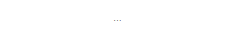
[diagram: root canvas - part 1/4, top left region]
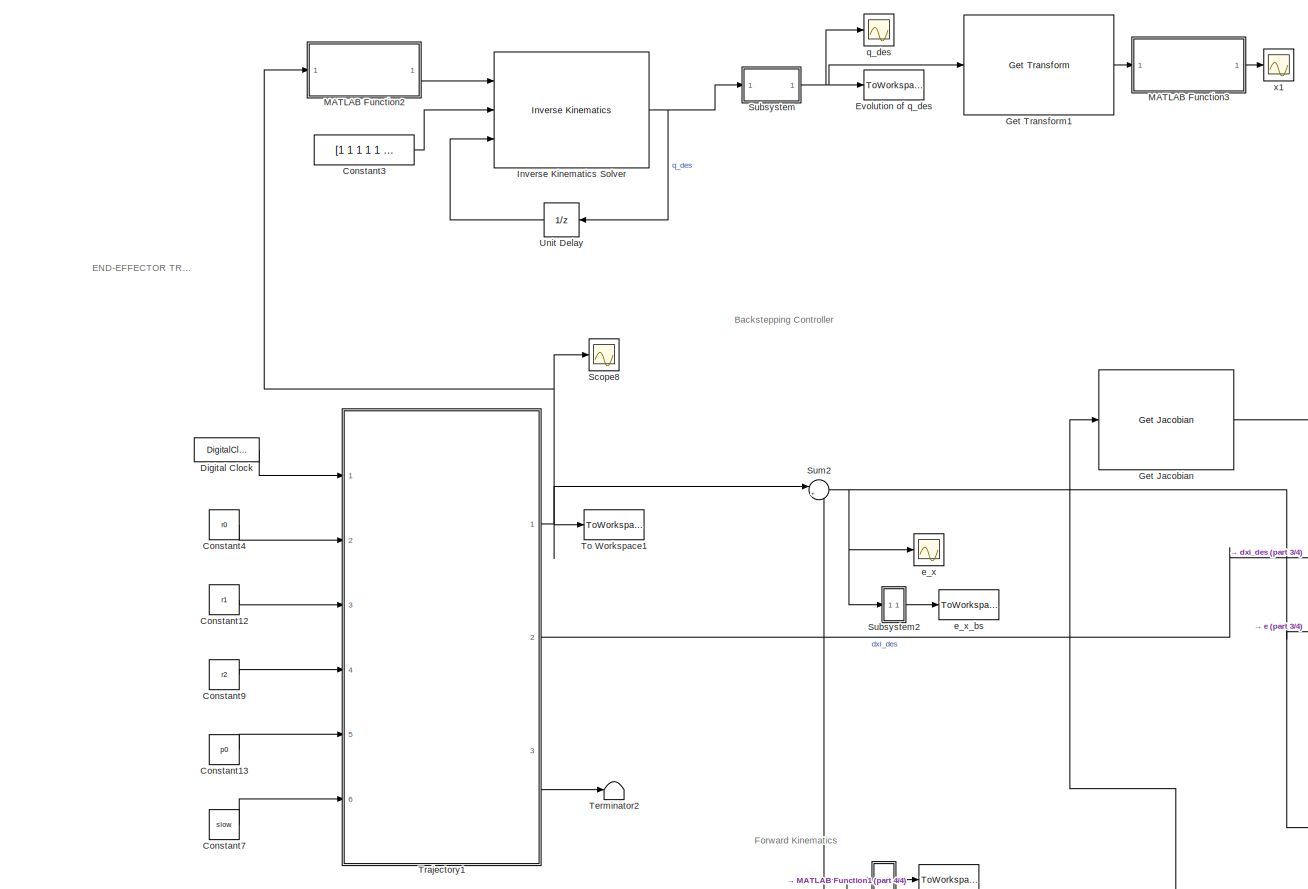
[diagram: root canvas - part 2/4, left side, full height]
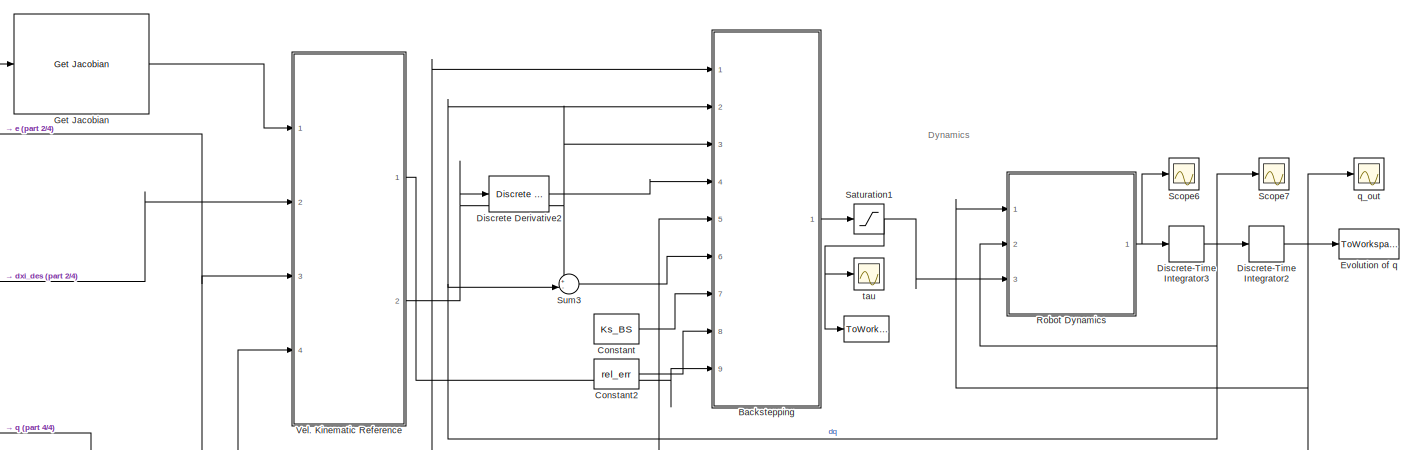
[diagram: root canvas - part 3/4, middle right region]
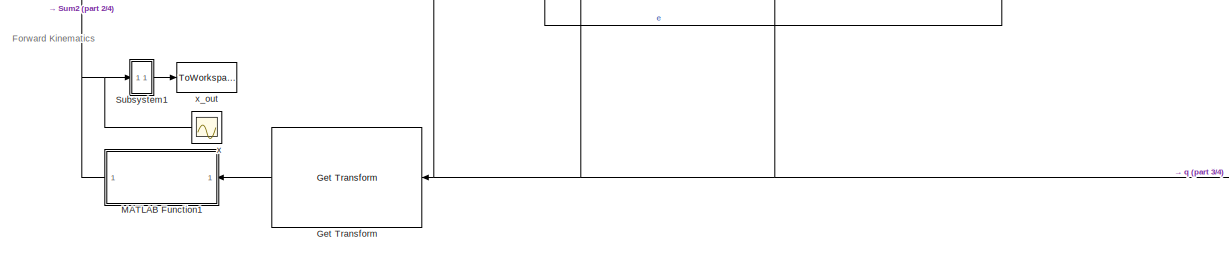
[diagram: root canvas - part 4/4, bottom center region]
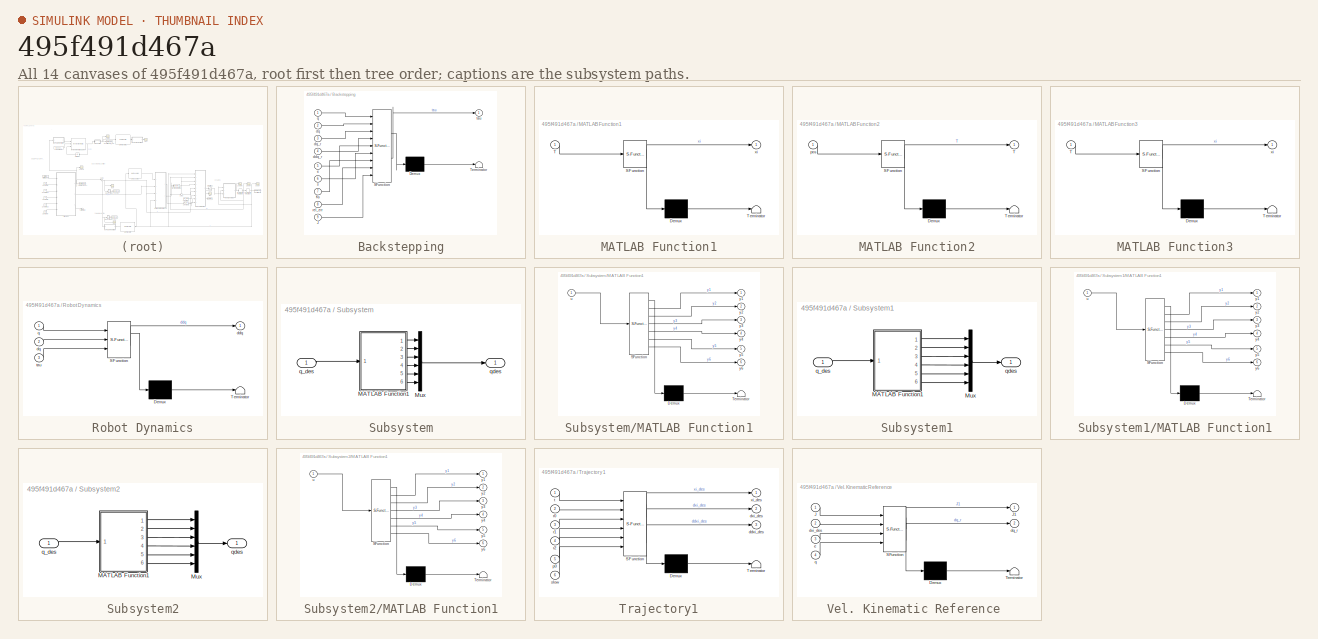
[diagram: thumbnail index - all 14 canvases of the model, root first then tree order]
MODEL slx_495f491d467a
KIND model
CONFIG AbsTol = auto
CONFIG EnableMultiTasking = off
CONFIG FixedStep = auto
CONFIG MaxStep = auto
CONFIG MinStep = auto
CONFIG RelTol = 1e-6
CONFIG SampleTimeConstraint = Unconstrained
CONFIG SolverName = VariableStepAuto
CONFIG StartTime = 0.0
CONFIG StopTime = 200
BLOCK [ToWorkspace]          
  FixptAsFi = on
  MaxDataPoints = inf
  Ports = [1]
  SampleTime = -1
  SaveFormat = Timeseries
  VariableName = tau_out
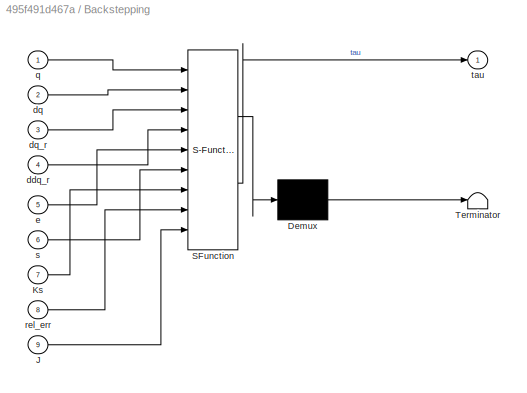
BLOCK [SubSystem] Backstepping
  ErrorFcn = Stateflow.Translate.translate
  PermitHierarchicalResolution = ExplicitOnly
  Ports = [9, 1]
  RequestExecContextInheritance = off
  SFBlockType = MATLAB Function
  TreatAsAtomicUnit = on
BLOCK [Demux] Backstepping/ Demux 
  Outputs = 1
  Ports = [1, 1]
BLOCK [S-Function] Backstepping/ SFunction 
  EnableBusSupport = on
  FunctionName = sf_sfun
  PortCounts = [9 2]
  Ports = [9, 2]
  SFcnIsStateOwnerBlock = off
  SFunctionDeploymentMode = off
  Tag = Stateflow S-Function 5
BLOCK [Terminator] Backstepping/ Terminator 
BLOCK [Inport] Backstepping/J
  Port = 9
BLOCK [Inport] Backstepping/Ks
  Port = 7
BLOCK [Inport] Backstepping/ddq_r
  Port = 4
BLOCK [Inport] Backstepping/dq
  Port = 2
BLOCK [Inport] Backstepping/dq_r
  Port = 3
BLOCK [Inport] Backstepping/e
  Port = 5
BLOCK [Inport] Backstepping/q
BLOCK [Inport] Backstepping/rel_err
  Port = 8
BLOCK [Inport] Backstepping/s
  Port = 6
BLOCK [Outport] Backstepping/tau
  VectorParamsAs1DForOutWhenUnconnected = off
BLOCK [Constant] Constant
  Value = Ks_BS
BLOCK [Constant] Constant12
  Value = r1
BLOCK [Constant] Constant13
  Value = p0
BLOCK [Constant] Constant2
  Value = rel_err
BLOCK [Constant] Constant3
  Value = [1 1 1 1 1 1]
BLOCK [Constant] Constant4
  Value = r0
BLOCK [Constant] Constant7
  Value = slow
BLOCK [Constant] Constant9
  Value = r2
BLOCK [DigitalClock] Digital Clock
  SampleTime = 0.01
BLOCK [Reference] Discrete Derivative2  REF=simulink/Discrete/Discrete Derivative
  Ports = [1, 1]
  SourceBlock = simulink/Discrete/Discrete Derivative
  SourceProductBaseCode = SL
  SourceType = Discrete Derivative
BLOCK [DiscreteIntegrator] Discrete-Time Integrator2
  ICPrevOutput = DiscIntNeverNeededParam
  ICPrevScaledInput = DiscIntNeverNeededParam
  InitialCondition = q0
  InitialConditionSetting = Auto
  Ports = [1, 1]
  SampleTime = -1
BLOCK [DiscreteIntegrator] Discrete-Time Integrator3
  ICPrevOutput = DiscIntNeverNeededParam
  ICPrevScaledInput = DiscIntNeverNeededParam
  InitialCondition = dq0
  InitialConditionSetting = Auto
  Ports = [1, 1]
  SampleTime = -1
BLOCK [ToWorkspace] Evolution of q
  FixptAsFi = on
  MaxDataPoints = inf
  Ports = [1]
  SampleTime = -1
  SaveFormat = Timeseries
  VariableName = q_out
BLOCK [ToWorkspace] Evolution of q_des
  FixptAsFi = on
  MaxDataPoints = inf
  Ports = [1]
  SampleTime = -1
  SaveFormat = Timeseries
  VariableName = q_des_out
BLOCK [Reference] Get Jacobian  REF=robotmaniplib/Get Jacobian
  Ports = [1, 1]
  SourceBlock = robotmaniplib/Get Jacobian
  SourceProductBaseCode = RO
  SourceType = Get Jacobian
BLOCK [Reference] Get Transform  REF=robotmaniplib/Get Transform
  NameLocation = top
  Ports = [1, 1]
  SourceBlock = robotmaniplib/Get Transform
  SourceProductBaseCode = RO
  SourceType = Get Transform
BLOCK [Reference] Get Transform1  REF=robotmaniplib/Get Transform
  Ports = [1, 1]
  SourceBlock = robotmaniplib/Get Transform
  SourceProductBaseCode = RO
  SourceType = Get Transform
BLOCK [Reference] Inverse Kinematics Solver  REF=robotmaniplib/Inverse Kinematics
  Ports = [3, 1]
  SourceBlock = robotmaniplib/Inverse Kinematics
  SourceProductBaseCode = RO
  SourceType = Inverse Kinematics
BLOCK [SubSystem] MATLAB Function1
  ErrorFcn = Stateflow.Translate.translate
  NameLocation = top
  PermitHierarchicalResolution = ExplicitOnly
  Ports = [1, 1]
  RequestExecContextInheritance = off
  SFBlockType = MATLAB Function
  TreatAsAtomicUnit = on
BLOCK [Demux] MATLAB Function1/ Demux 
  Outputs = 1
  Ports = [1, 1]
BLOCK [S-Function] MATLAB Function1/ SFunction 
  EnableBusSupport = on
  FunctionName = sf_sfun
  PortCounts = [1 2]
  Ports = [1, 2]
  SFcnIsStateOwnerBlock = off
  SFunctionDeploymentMode = off
  Tag = Stateflow S-Function 2
BLOCK [Terminator] MATLAB Function1/ Terminator 
BLOCK [Inport] MATLAB Function1/T
BLOCK [Outport] MATLAB Function1/xi
BLOCK [SubSystem] MATLAB Function2
  ErrorFcn = Stateflow.Translate.translate
  PermitHierarchicalResolution = ExplicitOnly
  Ports = [1, 1]
  RequestExecContextInheritance = off
  SFBlockType = MATLAB Function
  TreatAsAtomicUnit = on
BLOCK [Demux] MATLAB Function2/ Demux 
  Outputs = 1
  Ports = [1, 1]
BLOCK [S-Function] MATLAB Function2/ SFunction 
  EnableBusSupport = on
  FunctionName = sf_sfun
  PortCounts = [1 2]
  Ports = [1, 2]
  SFcnIsStateOwnerBlock = off
  SFunctionDeploymentMode = off
  Tag = Stateflow S-Function 11
BLOCK [Terminator] MATLAB Function2/ Terminator 
BLOCK [Outport] MATLAB Function2/T
BLOCK [Inport] MATLAB Function2/pos
BLOCK [SubSystem] MATLAB Function3
  ErrorFcn = Stateflow.Translate.translate
  PermitHierarchicalResolution = ExplicitOnly
  Ports = [1, 1]
  RequestExecContextInheritance = off
  SFBlockType = MATLAB Function
  TreatAsAtomicUnit = on
BLOCK [Demux] MATLAB Function3/ Demux 
  Outputs = 1
  Ports = [1, 1]
BLOCK [S-Function] MATLAB Function3/ SFunction 
  EnableBusSupport = on
  FunctionName = sf_sfun
  PortCounts = [1 2]
  Ports = [1, 2]
  SFcnIsStateOwnerBlock = off
  SFunctionDeploymentMode = off
  Tag = Stateflow S-Function 1
BLOCK [Terminator] MATLAB Function3/ Terminator 
BLOCK [Inport] MATLAB Function3/T
BLOCK [Outport] MATLAB Function3/xi
BLOCK [SubSystem] Robot Dynamics
  ErrorFcn = Stateflow.Translate.translate
  PermitHierarchicalResolution = ExplicitOnly
  Ports = [3, 1]
  RequestExecContextInheritance = off
  SFBlockType = MATLAB Function
  TreatAsAtomicUnit = on
BLOCK [Demux] Robot Dynamics/ Demux 
  Outputs = 1
  Ports = [1, 1]
BLOCK [S-Function] Robot Dynamics/ SFunction 
  EnableBusSupport = on
  FunctionName = sf_sfun
  PortCounts = [3 2]
  Ports = [3, 2]
  SFcnIsStateOwnerBlock = off
  SFunctionDeploymentMode = off
  Tag = Stateflow S-Function 12
BLOCK [Terminator] Robot Dynamics/ Terminator 
BLOCK [Outport] Robot Dynamics/ddq
  VectorParamsAs1DForOutWhenUnconnected = off
BLOCK [Inport] Robot Dynamics/dq
  Port = 2
BLOCK [Inport] Robot Dynamics/q
BLOCK [Inport] Robot Dynamics/tau
  Port = 3
BLOCK [Saturate] Saturation1
  LowerLimit = -100
  UpperLimit = 100
BLOCK [Scope] Scope6
  Commented = on
  Floating = off
  NumInputPorts = 1
  Ports = [1]
  ScopeSpecificationString = Simulink.scopes.TimeScopeBlockCfg('CurrentConfiguration', extmgr.ConfigurationSet(extmgr.Configuration('Core','General UI',true),extmgr.Configuration('Core','Source UI',true),extmgr.Configuration('Sources','WiredSimulink',true,'DataLoggingVariableName','ScopeData4'),extmgr.Configuration('Visuals','Time Domain',true,'SerializedDisplays',{struct('MinYLimReal','-5596.78805','MaxYLimReal','5521.07963'...<+1567ch>
BLOCK [Scope] Scope7
  Commented = on
  Floating = off
  NumInputPorts = 1
  Ports = [1]
  ScopeSpecificationString = Simulink.scopes.TimeScopeBlockCfg('CurrentConfiguration', extmgr.ConfigurationSet(extmgr.Configuration('Core','General UI',true),extmgr.Configuration('Core','Source UI',true),extmgr.Configuration('Sources','WiredSimulink',true,'DataLoggingVariableName','ScopeData5'),extmgr.Configuration('Visuals','Time Domain',true,'SerializedDisplays',{struct('MinYLimReal','-21.23035','MaxYLimReal','51.35107','YL...<+1475ch>
BLOCK [Scope] Scope8
  Floating = off
  NumInputPorts = 1
  Ports = [1]
  ScopeSpecificationString = Simulink.scopes.TimeScopeBlockCfg('CurrentConfiguration', extmgr.ConfigurationSet(extmgr.Configuration('Core','General UI',true),extmgr.Configuration('Core','Source UI',true),extmgr.Configuration('Sources','WiredSimulink',true,'DataLoggingVariableName','ScopeData1'),extmgr.Configuration('Visuals','Time Domain',true,'SerializedDisplays',{struct('MinYLimReal','-0.5625','MaxYLimReal','1.0625','YLabel...<+1696ch>
BLOCK [SubSystem] Subsystem
  Ports = [1, 1]
  RequestExecContextInheritance = off
BLOCK [SubSystem] Subsystem/MATLAB Function1
  ErrorFcn = Stateflow.Translate.translate
  PermitHierarchicalResolution = ExplicitOnly
  Ports = [1, 6]
  RequestExecContextInheritance = off
  SFBlockType = MATLAB Function
  TreatAsAtomicUnit = on
BLOCK [Demux] Subsystem/MATLAB Function1/ Demux 
  Outputs = 1
  Ports = [1, 1]
BLOCK [S-Function] Subsystem/MATLAB Function1/ SFunction 
  EnableBusSupport = on
  FunctionName = sf_sfun
  PortCounts = [1 7]
  Ports = [1, 7]
  SFcnIsStateOwnerBlock = off
  SFunctionDeploymentMode = off
  Tag = Stateflow S-Function 4
BLOCK [Terminator] Subsystem/MATLAB Function1/ Terminator 
BLOCK [Inport] Subsystem/MATLAB Function1/u
BLOCK [Outport] Subsystem/MATLAB Function1/y1
BLOCK [Outport] Subsystem/MATLAB Function1/y2
  Port = 2
BLOCK [Outport] Subsystem/MATLAB Function1/y3
  Port = 3
BLOCK [Outport] Subsystem/MATLAB Function1/y4
  Port = 4
BLOCK [Outport] Subsystem/MATLAB Function1/y5
  Port = 5
BLOCK [Outport] Subsystem/MATLAB Function1/y6
  Port = 6
BLOCK [Mux] Subsystem/Mux
  DisplayOption = bar
  Inputs = 6
  Ports = [6, 1]
BLOCK [Inport] Subsystem/q_des
BLOCK [Outport] Subsystem/qdes
BLOCK [SubSystem] Subsystem1
  Ports = [1, 1]
  RequestExecContextInheritance = off
BLOCK [SubSystem] Subsystem1/MATLAB Function1
  ErrorFcn = Stateflow.Translate.translate
  PermitHierarchicalResolution = ExplicitOnly
  Ports = [1, 6]
  RequestExecContextInheritance = off
  SFBlockType = MATLAB Function
  TreatAsAtomicUnit = on
BLOCK [Demux] Subsystem1/MATLAB Function1/ Demux 
  Outputs = 1
  Ports = [1, 1]
BLOCK [S-Function] Subsystem1/MATLAB Function1/ SFunction 
  EnableBusSupport = on
  FunctionName = sf_sfun
  PortCounts = [1 7]
  Ports = [1, 7]
  SFcnIsStateOwnerBlock = off
  SFunctionDeploymentMode = off
  Tag = Stateflow S-Function 7
BLOCK [Terminator] Subsystem1/MATLAB Function1/ Terminator 
BLOCK [Inport] Subsystem1/MATLAB Function1/u
BLOCK [Outport] Subsystem1/MATLAB Function1/y1
BLOCK [Outport] Subsystem1/MATLAB Function1/y2
  Port = 2
BLOCK [Outport] Subsystem1/MATLAB Function1/y3
  Port = 3
BLOCK [Outport] Subsystem1/MATLAB Function1/y4
  Port = 4
BLOCK [Outport] Subsystem1/MATLAB Function1/y5
  Port = 5
BLOCK [Outport] Subsystem1/MATLAB Function1/y6
  Port = 6
BLOCK [Mux] Subsystem1/Mux
  DisplayOption = bar
  Inputs = 6
  Ports = [6, 1]
BLOCK [Inport] Subsystem1/q_des
BLOCK [Outport] Subsystem1/qdes
BLOCK [SubSystem] Subsystem2
  Ports = [1, 1]
  RequestExecContextInheritance = off
BLOCK [SubSystem] Subsystem2/MATLAB Function1
  ErrorFcn = Stateflow.Translate.translate
  PermitHierarchicalResolution = ExplicitOnly
  Ports = [1, 6]
  RequestExecContextInheritance = off
  SFBlockType = MATLAB Function
  TreatAsAtomicUnit = on
BLOCK [Demux] Subsystem2/MATLAB Function1/ Demux 
  Outputs = 1
  Ports = [1, 1]
BLOCK [S-Function] Subsystem2/MATLAB Function1/ SFunction 
  EnableBusSupport = on
  FunctionName = sf_sfun
  PortCounts = [1 7]
  Ports = [1, 7]
  SFcnIsStateOwnerBlock = off
  SFunctionDeploymentMode = off
  Tag = Stateflow S-Function 8
BLOCK [Terminator] Subsystem2/MATLAB Function1/ Terminator 
BLOCK [Inport] Subsystem2/MATLAB Function1/u
BLOCK [Outport] Subsystem2/MATLAB Function1/y1
BLOCK [Outport] Subsystem2/MATLAB Function1/y2
  Port = 2
BLOCK [Outport] Subsystem2/MATLAB Function1/y3
  Port = 3
BLOCK [Outport] Subsystem2/MATLAB Function1/y4
  Port = 4
BLOCK [Outport] Subsystem2/MATLAB Function1/y5
  Port = 5
BLOCK [Outport] Subsystem2/MATLAB Function1/y6
  Port = 6
BLOCK [Mux] Subsystem2/Mux
  DisplayOption = bar
  Inputs = 6
  Ports = [6, 1]
BLOCK [Inport] Subsystem2/q_des
BLOCK [Outport] Subsystem2/qdes
BLOCK [Sum] Sum2
  Inputs = |+-
  Ports = [2, 1]
BLOCK [Sum] Sum3
  Inputs = +-|
  Ports = [2, 1]
BLOCK [Terminator] Terminator2
BLOCK [ToWorkspace] To Workspace1
  FixptAsFi = on
  MaxDataPoints = inf
  Ports = [1]
  SampleTime = -1
  SaveFormat = Timeseries
  VariableName = xi_des_out
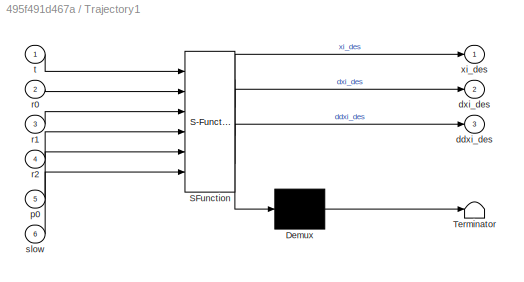
BLOCK [SubSystem] Trajectory1
  ErrorFcn = Stateflow.Translate.translate
  PermitHierarchicalResolution = ExplicitOnly
  Ports = [6, 3]
  RequestExecContextInheritance = off
  SFBlockType = MATLAB Function
  TreatAsAtomicUnit = on
BLOCK [Demux] Trajectory1/ Demux 
  Outputs = 1
  Ports = [1, 1]
BLOCK [S-Function] Trajectory1/ SFunction 
  EnableBusSupport = on
  FunctionName = sf_sfun
  PortCounts = [6 4]
  Ports = [6, 4]
  SFcnIsStateOwnerBlock = off
  SFunctionDeploymentMode = off
  Tag = Stateflow S-Function 6
BLOCK [Terminator] Trajectory1/ Terminator 
BLOCK [Outport] Trajectory1/ddxi_des
  Port = 3
  VectorParamsAs1DForOutWhenUnconnected = off
BLOCK [Outport] Trajectory1/dxi_des
  Port = 2
  VectorParamsAs1DForOutWhenUnconnected = off
BLOCK [Inport] Trajectory1/p0
  Port = 5
BLOCK [Inport] Trajectory1/r0
  Port = 2
BLOCK [Inport] Trajectory1/r1
  Port = 3
BLOCK [Inport] Trajectory1/r2
  Port = 4
BLOCK [Inport] Trajectory1/slow
  Port = 6
BLOCK [Inport] Trajectory1/t
BLOCK [Outport] Trajectory1/xi_des
  VectorParamsAs1DForOutWhenUnconnected = off
BLOCK [UnitDelay] Unit Delay
  HasFrameUpgradeWarning = on
  SampleTime = -1
BLOCK [SubSystem] Vel. Kinematic Reference 
  ErrorFcn = Stateflow.Translate.translate
  PermitHierarchicalResolution = ExplicitOnly
  Ports = [4, 2]
  RequestExecContextInheritance = off
  SFBlockType = MATLAB Function
  TreatAsAtomicUnit = on
BLOCK [Demux] Vel. Kinematic Reference / Demux 
  Outputs = 1
  Ports = [1, 1]
BLOCK [S-Function] Vel. Kinematic Reference / SFunction 
  EnableBusSupport = on
  FunctionName = sf_sfun
  Parameters = Lambda_BS
  PortCounts = [4 3]
  Ports = [4, 3]
  SFcnIsStateOwnerBlock = off
  SFunctionDeploymentMode = off
  Tag = Stateflow S-Function 3
BLOCK [Terminator] Vel. Kinematic Reference / Terminator 
BLOCK [Inport] Vel. Kinematic Reference /J
BLOCK [Outport] Vel. Kinematic Reference /J1
BLOCK [Outport] Vel. Kinematic Reference /dq_r
  Port = 2
  VectorParamsAs1DForOutWhenUnconnected = off
BLOCK [Inport] Vel. Kinematic Reference /dxi_des
  Port = 2
BLOCK [Inport] Vel. Kinematic Reference /e
  Port = 3
BLOCK [Inport] Vel. Kinematic Reference /q
  Port = 4
BLOCK [Scope] e_x
  Floating = off
  NumInputPorts = 1
  Ports = [1]
  ScopeSpecificationString = Simulink.scopes.TimeScopeBlockCfg('CurrentConfiguration', extmgr.ConfigurationSet(extmgr.Configuration('Core','General UI',true),extmgr.Configuration('Core','Source UI',true),extmgr.Configuration('Sources','WiredSimulink',true,'DataLoggingVariableName','ScopeData2'),extmgr.Configuration('Visuals','Time Domain',true,'SerializedDisplays',{struct('MinYLimReal','-3.92475','MaxYLimReal','3.92158','YLab...<+1598ch>
BLOCK [ToWorkspace] e_x_bs
  FixptAsFi = on
  MaxDataPoints = inf
  Ports = [1]
  SampleTime = -1
  SaveFormat = Timeseries
  VariableName = e_x
BLOCK [Scope] q_des
  Floating = off
  NumInputPorts = 1
  Ports = [1]
  ScopeSpecificationString = Simulink.scopes.TimeScopeBlockCfg('CurrentConfiguration', extmgr.ConfigurationSet(extmgr.Configuration('Core','General UI',true),extmgr.Configuration('Core','Source UI',true),extmgr.Configuration('Sources','WiredSimulink',true,'DataLoggingVariableName','ScopeData1'),extmgr.Configuration('Visuals','Time Domain',true,'SerializedDisplays',{struct('MinYLimReal','-178.50512','MaxYLimReal','21.75264','Y...<+1634ch>
BLOCK [Scope] q_out
  Floating = off
  NumInputPorts = 1
  Ports = [1]
  ScopeSpecificationString = Simulink.scopes.TimeScopeBlockCfg('CurrentConfiguration', extmgr.ConfigurationSet(extmgr.Configuration('Core','General UI',true),extmgr.Configuration('Core','Source UI',true),extmgr.Configuration('Sources','WiredSimulink',true,'DataLoggingVariableName','ScopeData8'),extmgr.Configuration('Visuals','Time Domain',true,'SerializedDisplays',{struct('MinYLimReal','-2.40129','MaxYLimReal','1.3537','YLabe...<+1600ch>
BLOCK [Scope] tau
  Floating = off
  NumInputPorts = 1
  Ports = [1]
  ScopeSpecificationString = Simulink.scopes.TimeScopeBlockCfg('CurrentConfiguration', extmgr.ConfigurationSet(extmgr.Configuration('Core','General UI',true),extmgr.Configuration('Core','Source UI',true),extmgr.Configuration('Sources','WiredSimulink',true,'DataLoggingVariableName','ScopeData2'),extmgr.Configuration('Visuals','Time Domain',true,'SerializedDisplays',{struct('MinYLimReal','-548.57148','MaxYLimReal','566.92593','...<+1543ch>
BLOCK [Scope] x
  Floating = off
  NumInputPorts = 1
  Ports = [1]
  ScopeSpecificationString = Simulink.scopes.TimeScopeBlockCfg('CurrentConfiguration', extmgr.ConfigurationSet(extmgr.Configuration('Core','General UI',true),extmgr.Configuration('Core','Source UI',true),extmgr.Configuration('Sources','WiredSimulink',true,'DataLoggingVariableName','ScopeData1'),extmgr.Configuration('Visuals','Time Domain',true,'SerializedDisplays',{struct('MinYLimReal','-0.71754','MaxYLimReal','1.08141','YLab...<+1673ch>
BLOCK [Scope] x1
  Floating = off
  NumInputPorts = 1
  Ports = [1]
  ScopeSpecificationString = Simulink.scopes.TimeScopeBlockCfg('CurrentConfiguration', extmgr.ConfigurationSet(extmgr.Configuration('Core','General UI',true),extmgr.Configuration('Core','Source UI',true),extmgr.Configuration('Sources','WiredSimulink',true,'DataLoggingVariableName','ScopeData3'),extmgr.Configuration('Visuals','Time Domain',true,'SerializedDisplays',{struct('MinYLimReal','-0.1125','MaxYLimReal','1.0125','YLabel...<+1527ch>
BLOCK [ToWorkspace] x_out
  FixptAsFi = on
  MaxDataPoints = inf
  Ports = [1]
  SampleTime = -1
  SaveFormat = Timeseries
  VariableName = x_out_bs
ANNOTATION (root): INVERSE KINEMATICS
ANNOTATION (root): END-EFFECTOR TRAJECTORY
ANNOTATION (root): Backstepping Controller
ANNOTATION (root): Dynamics
ANNOTATION (root): Forward Kinematics
LINE Backstepping:1 -> Saturation1:1
LINE Constant12:1 -> Trajectory1:3
LINE Constant13:1 -> Trajectory1:5
LINE Constant2:1 -> Backstepping:8
LINE Constant3:1 -> Inverse Kinematics Solver:2
LINE Constant4:1 -> Trajectory1:2
LINE Constant7:1 -> Trajectory1:6
LINE Constant9:1 -> Trajectory1:4
LINE Constant:1 -> Backstepping:7
LINE Digital Clock:1 -> Trajectory1:1
LINE Discrete Derivative2:1 -> Backstepping:4
NET Discrete-Time Integrator2:1 -> Backstepping:1, Evolution of q:1, Get Jacobian:1, Get Transform:1, Robot Dynamics:1, Vel. Kinematic Reference :4, q_out:1
NET Discrete-Time Integrator3:1 -> Backstepping:2, Discrete-Time Integrator2:1, Robot Dynamics:2, Scope7:1, Sum3:2
LINE Get Jacobian:1 -> Vel. Kinematic Reference :1
LINE Get Transform1:1 -> MATLAB Function3:1
LINE Get Transform:1 -> MATLAB Function1:1
NET Inverse Kinematics Solver:1 -> Subsystem:1, Unit Delay:1
NET MATLAB Function1:1 -> Subsystem1:1, Sum2:2, x:1
LINE MATLAB Function2:1 -> Inverse Kinematics Solver:1
LINE MATLAB Function3:1 -> x1:1
NET Robot Dynamics:1 -> Discrete-Time Integrator3:1, Scope6:1
NET Saturation1:1 ->          :1, Robot Dynamics:3, tau:1
LINE Subsystem/MATLAB Function1:1 -> Subsystem/Mux:1
LINE Subsystem/MATLAB Function1:2 -> Subsystem/Mux:2
LINE Subsystem/MATLAB Function1:3 -> Subsystem/Mux:3
LINE Subsystem/MATLAB Function1:4 -> Subsystem/Mux:4
LINE Subsystem/MATLAB Function1:5 -> Subsystem/Mux:5
LINE Subsystem/MATLAB Function1:6 -> Subsystem/Mux:6
LINE Subsystem/Mux:1 -> Subsystem/qdes:1
LINE Subsystem/q_des:1 -> Subsystem/MATLAB Function1:1
LINE Subsystem1/MATLAB Function1:1 -> Subsystem1/Mux:1
LINE Subsystem1/MATLAB Function1:2 -> Subsystem1/Mux:2
LINE Subsystem1/MATLAB Function1:3 -> Subsystem1/Mux:3
LINE Subsystem1/MATLAB Function1:4 -> Subsystem1/Mux:4
LINE Subsystem1/MATLAB Function1:5 -> Subsystem1/Mux:5
LINE Subsystem1/MATLAB Function1:6 -> Subsystem1/Mux:6
LINE Subsystem1/Mux:1 -> Subsystem1/qdes:1
LINE Subsystem1/q_des:1 -> Subsystem1/MATLAB Function1:1
LINE Subsystem1:1 -> x_out:1
LINE Subsystem2/MATLAB Function1:1 -> Subsystem2/Mux:1
LINE Subsystem2/MATLAB Function1:2 -> Subsystem2/Mux:2
LINE Subsystem2/MATLAB Function1:3 -> Subsystem2/Mux:3
LINE Subsystem2/MATLAB Function1:4 -> Subsystem2/Mux:4
LINE Subsystem2/MATLAB Function1:5 -> Subsystem2/Mux:5
LINE Subsystem2/MATLAB Function1:6 -> Subsystem2/Mux:6
LINE Subsystem2/Mux:1 -> Subsystem2/qdes:1
LINE Subsystem2/q_des:1 -> Subsystem2/MATLAB Function1:1
LINE Subsystem2:1 -> e_x_bs:1
NET Subsystem:1 -> Evolution of q_des:1, Get Transform1:1, q_des:1
NET Sum2:1 -> Backstepping:5, Subsystem2:1, Vel. Kinematic Reference :3, e_x:1
LINE Sum3:1 -> Backstepping:6
NET Trajectory1:1 -> MATLAB Function2:1, Scope8:1, Sum2:1, To Workspace1:1
LINE Trajectory1:2 -> Vel. Kinematic Reference :2
LINE Trajectory1:3 -> Terminator2:1
LINE Unit Delay:1 -> Inverse Kinematics Solver:3
LINE Vel. Kinematic Reference :1 -> Backstepping:9
NET Vel. Kinematic Reference :2 -> Backstepping:3, Discrete Derivative2:1, Sum3:1
note: NET lines group one-source signal fan-out (src -> all destinations, sorted); 1:1 wires keep LINE
CHART MATLAB Function2 states=1 transitions=1
  STATE_LABEL 'eML_blk_kernel()'
  STATE_LABEL "SCRIPT:\nfunction T = homogeneus_transf(pos)\n\nR=eye(3);\nT=eye(4);\n\n% Use a XYZ parametrization for pose determination\n\n% R = eul2rotm([pos(4);pos(5);pos(6)], 'XYZ');\n\nphi   = pos(4);\ntheta = pos(5);\npsi   = pos(6);\n\nR = [                              cos(psi)*cos(theta),                             -cos(theta)*sin(psi),           sin(theta) ;\n     cos(phi)*sin(psi) + cos(psi)*sin(phi)*sin(theta), c...<+286ch>"
CHART Robot Dynamics states=1 transitions=1
  STATE_LABEL 'eML_blk_kernel()'
  STATE_LABEL 'SCRIPT:\nfunction ddq = inverse_dynamics(q, dq, tau)\n    \n    g = 9.81;\n    \n    % Get dynamic matrices\n    M = UR_B(q);\n    C = UR_C(q, dq);\n    G = UR_G(q,g);\n    \n    ddq = pinv(M)*(tau - C*dq - G);\n\nend\n\n\n\n'
CHART MATLAB Function3 states=1 transitions=1
  STATE_LABEL 'eML_blk_kernel()'
  STATE_LABEL "SCRIPT:\nfunction xi   = forward_kinematics(T)\n\n%   [T,phi,theta,psi] = UR_FK(q);\n    \n    R = T(1:3,1:3);\n    eulXYZ = rotm2eul(R, 'XYZ');\n    phi   = eulXYZ(1);\n    theta = eulXYZ(2);\n    psi   = eulXYZ(3);\n    \n    xi = [T(1:3,4);phi;theta;psi];\n\nend"
CHART MATLAB Function1 states=1 transitions=1
  STATE_LABEL 'eML_blk_kernel()'
  STATE_LABEL "SCRIPT:\nfunction xi   = forward_kinematics(T)\n\n%   [T,phi,theta,psi] = UR_FK(q);\n    \n    R = T(1:3,1:3);\n    eulXYZ = rotm2eul(R, 'XYZ');\n    phi   = eulXYZ(1);\n    theta = eulXYZ(2);\n    psi   = eulXYZ(3);\n    \n    xi = [T(1:3,4);phi;theta;psi];\n\nend"
CHART Vel. Kinematic Reference
 states=1 transitions=1
  STATE_LABEL 'eML_blk_kernel()'
  STATE_LABEL 'SCRIPT:\nfunction [J1,dq_r] = vel_kinematic_reference(J, dxi_des, e, q, Lambda_BS)\n\n    % Computing jacobian\n    J1 = J(4:6,1:6);\n     \n    dq_r = pinv(J1) * (dxi_des(1:3) + Lambda_BS(1:3,1:3)*e(1:3));\n\n\nend\n\n\n\n'
CHART Subsystem/MATLAB Function1 states=1 transitions=1
  STATE_LABEL 'eML_blk_kernel()'
  STATE_LABEL 'SCRIPT:\nfunction [y1,y2,y3,y4,y5,y6] = fcn(u)\n\ny1 = squeeze(u(1));\ny2 = squeeze(u(2));\ny3 = squeeze(u(3));\ny4 = squeeze(u(4));\ny5 = squeeze(u(5));\ny6 = squeeze(u(6));\n'
CHART Backstepping states=1 transitions=1
  STATE_LABEL 'eML_blk_kernel()'
  STATE_LABEL 'SCRIPT:\nfunction tau = backstepping(q, dq, dq_r, ddq_r, e, s, Ks, rel_err,J)\n\n    g = 9.81;\n    \n%      J = J(4:6,1:3);\n%     J=[J1(4:6,1:6);J1(1:3,1:6)];\n\n    % Get dynamic matrices\n    M = UR_B(q);\n    C = UR_C(q,dq);\n    G = UR_G(q,g);\n    \n    % Adding uncertainty\n    M = M.*(1 + rel_err);\n    C = C.*(1 + rel_err);\n    G = G.*(1 + rel_err);\n    \n    % Control law\n    tau = M*ddq_r + C*dq_r + G...<+26ch>'
CHART Trajectory1 states=1 transitions=1
  STATE_LABEL 'eML_blk_kernel()'
  STATE_LABEL 'SCRIPT:\nfunction [xi_des, dxi_des, ddxi_des] = trajectory(t,r0,r1,r2,p0,slow)\n\nk=slow;\n\nxi_des =   [r0*sin(t/(2*k))       ; r1*sin(t/k)     ; r2*cos(t/k)     ;0;0;0] + p0;\ndxi_des =  [r0/2/k*cos(t/(2*k))   ; r1/k*cos(t/k)   ; -r2/k*sin(t/k)  ;0;0;0];\nddxi_des = [-r0/4/k/k*sin(t/(2*k)); -r1/k/k*sin(t/k); -r2/k/k*cos(t/k);0;0;0];\n'
CHART Subsystem1/MATLAB Function1 states=1 transitions=1
  STATE_LABEL 'eML_blk_kernel()'
  STATE_LABEL 'SCRIPT:\nfunction [y1,y2,y3,y4,y5,y6] = fcn(u)\n\ny1 = squeeze(u(1));\ny2 = squeeze(u(2));\ny3 = squeeze(u(3));\ny4 = squeeze(u(4));\ny5 = squeeze(u(5));\ny6 = squeeze(u(6));'
CHART Subsystem2/MATLAB Function1 states=1 transitions=1
  STATE_LABEL 'eML_blk_kernel()'
  STATE_LABEL 'SCRIPT:\nfunction [y1,y2,y3,y4,y5,y6] = fcn(u)\n\ny1 = squeeze(u(1));\ny2 = squeeze(u(2));\ny3 = squeeze(u(3));\ny4 = squeeze(u(4));\ny5 = squeeze(u(5));\ny6 = squeeze(u(6));'
CHART  states=0 transitions=0
CHART  states=0 transitions=0
CHART  states=0 transitions=0
CHART  states=0 transitions=0
CHART  states=0 transitions=0
CHART  states=0 transitions=0
CHART  states=0 transitions=0
CHART  states=0 transitions=0
CHART  states=0 transitions=0
CHART  states=0 transitions=0
